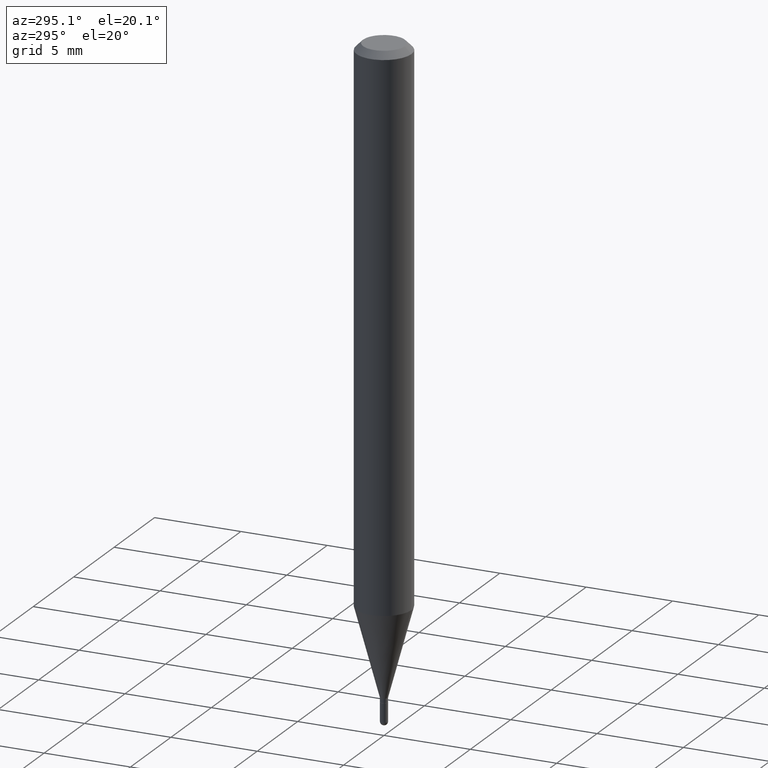
[diagram: clean part render]
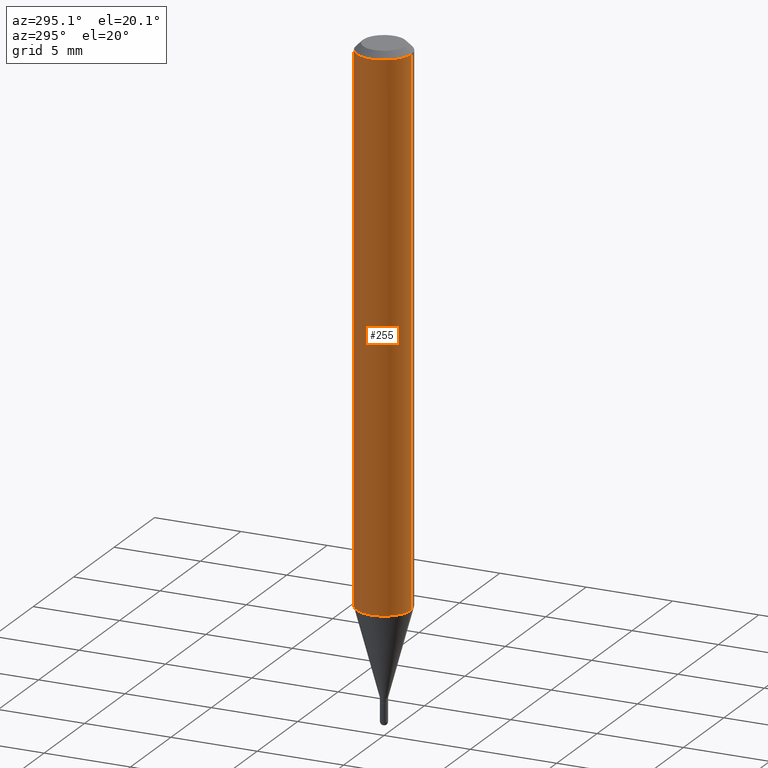
[diagram: same view with one face highlighted and labeled with its STEP entity id]
A machine part, auxiliary view. The second image highlights one B-rep face of the part: STEP entity #255.
In plain terms, the highlighted cylindrical surface (edge-blend (fillet) strip) has radius 1.5875 mm, axis along (-0, 0, 1).
Its self-contained STEP definition (entity closure, byte-faithful):
#13 = CARTESIAN_POINT ( 'NONE',  ( -4.364351673553912750E-16, -0.06250000000000005551, -0.01499999999999954321 ) ) ;
#38 = AXIS2_PLACEMENT_3D ( 'NONE', #231, #192, #234 ) ;
#40 = EDGE_CURVE ( 'NONE', #104, #280, #371, .T. ) ;
#42 = DIRECTION ( 'NONE',  ( -2.445462151224154742E-29, 3.491490869126048320E-15, 1.000000000000000000 ) ) ;
#95 = VERTEX_POINT ( 'NONE', #13 ) ;
#99 = CARTESIAN_POINT ( 'NONE',  ( 4.440892098500927901E-16, 0.06249999999999569095, -1.237469256391281691 ) ) ;
#104 = VERTEX_POINT ( 'NONE', #99 ) ;
#115 = AXIS2_PLACEMENT_3D ( 'NONE', #286, #42, #380 ) ;
#124 = DIRECTION ( 'NONE',  ( -2.445462151224155023E-29, 3.491490869126048320E-15, 1.000000000000000000 ) ) ;
#126 = CYLINDRICAL_SURFACE ( 'NONE', #115, 0.06250000000000000000 ) ;
#137 = LINE ( 'NONE', #143, #318 ) ;
#143 = CARTESIAN_POINT ( 'NONE',  ( -4.364351673553916201E-16, -0.06250000000000000000, 2.182181793203780200E-16 ) ) ;
#157 = DIRECTION ( 'NONE',  ( -2.445462151224154742E-29, 3.491490869126048320E-15, 1.000000000000000000 ) ) ;
#163 = CIRCLE ( 'NONE', #38, 0.06250000000000000000 ) ;
#181 = ORIENTED_EDGE ( 'NONE', *, *, #454, .F. ) ;
#182 = ORIENTED_EDGE ( 'NONE', *, *, #251, .T. ) ;
#192 = DIRECTION ( 'NONE',  ( -2.445462151224154742E-29, 3.491490869126048320E-15, 1.000000000000000000 ) ) ;
#202 = EDGE_LOOP ( 'NONE', ( #390, #182, #293, #181 ) ) ;
#231 = CARTESIAN_POINT ( 'NONE',  ( 3.026184229808377887E-29, -4.320612609514359217E-15, -1.237469256391281247 ) ) ;
#234 = DIRECTION ( 'NONE',  ( -6.982962677686265922E-15, -1.000000000000000000, 4.370956789862821150E-15 ) ) ;
#251 = EDGE_CURVE ( 'NONE', #104, #488, #163, .T. ) ;
#255 = ADVANCED_FACE ( 'NONE', ( #358 ), #126, .T. ) ;
#266 = DIRECTION ( 'NONE',  ( -6.982962677686265922E-15, -1.000000000000000000, 3.483106191921935554E-15 ) ) ;
#280 = VERTEX_POINT ( 'NONE', #312 ) ;
#286 = CARTESIAN_POINT ( 'NONE',  ( 0.000000000000000000, 0.000000000000000000, 0.000000000000000000 ) ) ;
#293 = ORIENTED_EDGE ( 'NONE', *, *, #374, .T. ) ;
#303 = DIRECTION ( 'NONE',  ( -2.445462151224155023E-29, 3.491490869126048320E-15, 1.000000000000000000 ) ) ;
#312 = CARTESIAN_POINT ( 'NONE',  ( 4.440892098500930859E-16, 0.06249999999999995143, -0.01499999999999997863 ) ) ;
#313 = CARTESIAN_POINT ( 'NONE',  ( -4.364351673553615448E-16, -0.06250000000000432987, -1.237469256391281025 ) ) ;
#318 = VECTOR ( 'NONE', #303, 39.37007874015748143 ) ;
#329 = CIRCLE ( 'NONE', #335, 0.06250000000000000000 ) ;
#335 = AXIS2_PLACEMENT_3D ( 'NONE', #509, #157, #266 ) ;
#358 = FACE_OUTER_BOUND ( 'NONE', #202, .T. ) ;
#371 = LINE ( 'NONE', #511, #435 ) ;
#374 = EDGE_CURVE ( 'NONE', #488, #95, #137, .T. ) ;
#380 = DIRECTION ( 'NONE',  ( -6.982962677686265922E-15, -1.000000000000000000, 3.491490869126048320E-15 ) ) ;
#390 = ORIENTED_EDGE ( 'NONE', *, *, #40, .F. ) ;
#435 = VECTOR ( 'NONE', #124, 39.37007874015748143 ) ;
#454 = EDGE_CURVE ( 'NONE', #280, #95, #329, .T. ) ;
#488 = VERTEX_POINT ( 'NONE', #313 ) ;
#509 = CARTESIAN_POINT ( 'NONE',  ( 3.668193226836173784E-31, -5.237236303688988910E-17, -0.01499999999999976179 ) ) ;
#511 = CARTESIAN_POINT ( 'NONE',  ( 4.440892098500625669E-16, 0.06250000000000000000, -2.182181793203780200E-16 ) ) ;